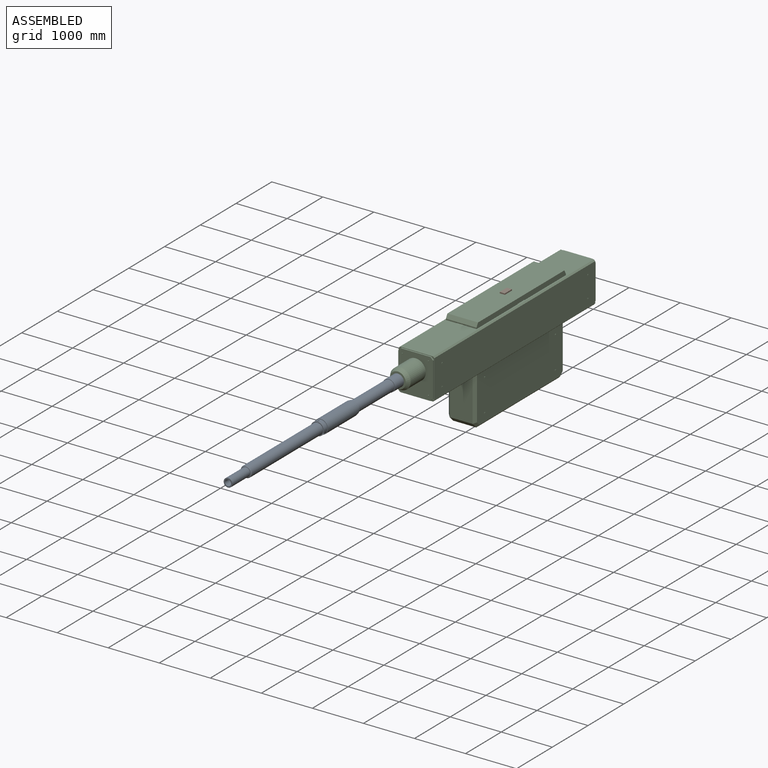
[diagram: assembled view]
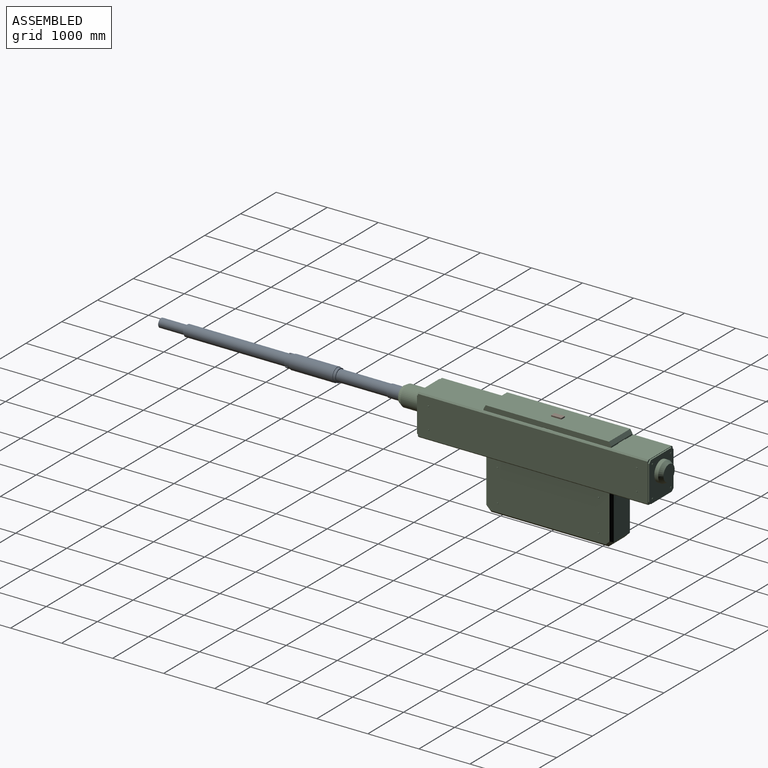
[diagram: assembled view, second angle]
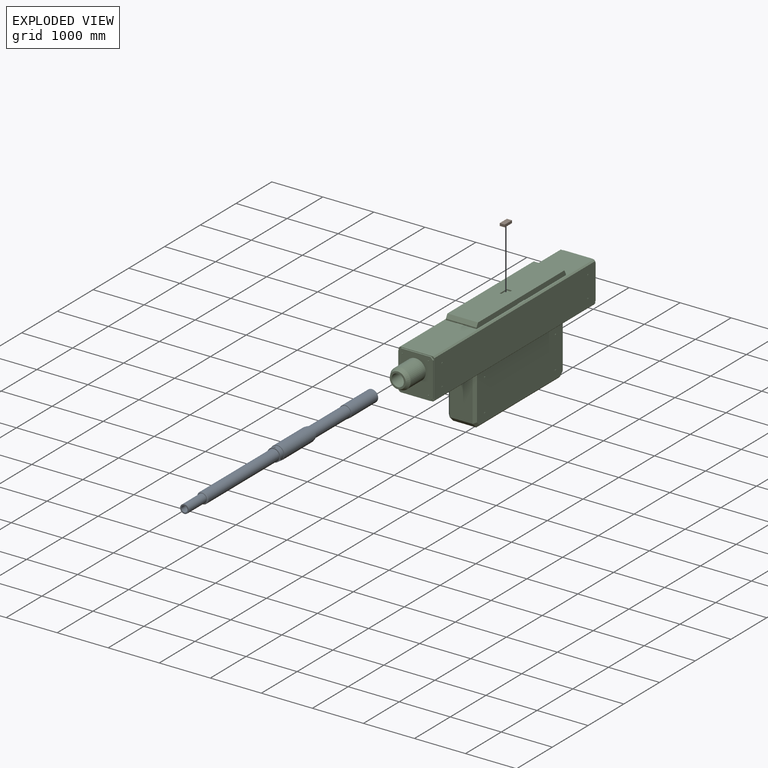
[diagram: exploded view]
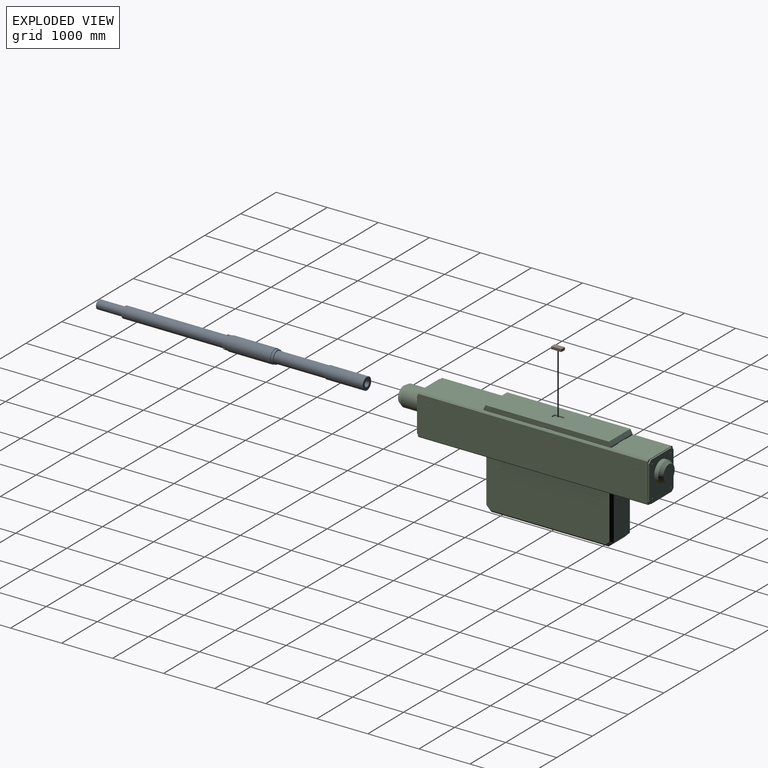
[diagram: exploded view, second angle]
ASSEMBLY  parts=3 mates=2
PART A: 29 faces, bbox 275x5250x275 mm
  f0: plane 255x254.61mm, normal (0,-1,0), area 12465.1mm2, adj f1,f8,f16,f17,f18,f20,f21,f22
  f1: cylinder r=127.5mm len=255mm, axis (0,-1,0), area 77107.5mm2, adj f0,f13,f16,f18,f19,f20,f22,f23
  f2: cylinder r=137.5mm len=850mm, axis (0,1,0), area 734347.3mm2, adj f13,f15
  f3: plane 255x255mm, normal (0,1,0), area 13057.2mm2, adj f7,f14
  f4: cylinder r=120mm len=750mm, axis (0,1,0), area 565486.7mm2, adj f5,f6
  f5: plane 240x240mm, normal (0,-1,0), area 7225.7mm2, adj f4,f7
  f6: plane 240x240mm, normal (0,1,0), area 33929.2mm2, adj f4,f12
  f7: cylinder r=110mm len=1000mm, axis (0,1,0), area 691150.4mm2, adj f3,f5
  f8: cylinder r=110mm len=1985mm, axis (0,1,0), area 1371933.5mm2, adj f0,f28
  f9: plane 190x190mm, normal (0,-1,0), area 5654.9mm2, adj f10,f28
  f10: cylinder r=85mm len=500mm, axis (0,1,0), area 267035.4mm2, adj f9,f11
  f11: plane 170x170mm, normal (0,-1,0), area 11388.3mm2, adj f10,f12
  f12: cylinder r=60mm len=5250mm, axis (0,-1,0), area 1979203.4mm2, adj f6,f11
  f13: plane 275x275mm, normal (0,-1,0), area 8325.2mm2, adj f1,f2
  f14: cylinder r=127.5mm len=255mm, axis (0,1,0), area 40055.3mm2, adj f3,f15
  f15: plane 275x275mm, normal (0,1,0), area 8325.2mm2, adj f2,f14
  f16: plane 50x9.61mm, normal (1,0,0), area 480.4mm2, adj f0,f1,f17,f19
  f17: plane 50x20mm, normal (0,0,1), area 1000mm2, adj f0,f16,f18,f19
  f18: plane 50x9.61mm, normal (-1,0,0), area 480.4mm2, adj f0,f1,f17,f19
  f19: plane 20x10mm, normal (0,-1,0), area 197.4mm2, adj f1,f16,f17,f18
  f20: plane 50x8.32mm, normal (-0.5,0,0.87), area 480.4mm2, adj f0,f1,f21,f23
  f21: plane 50x17.32mm, normal (-0.87,0,-0.5), area 1000mm2, adj f0,f20,f22,f23
  f22: plane 50x8.32mm, normal (0.5,0,-0.87), area 480.4mm2, adj f0,f1,f21,f23
  f23: plane 22.12x18.32mm, normal (0,-1,0), area 197.4mm2, adj f1,f20,f21,f22
  f24: plane 50x8.32mm, normal (-0.5,0,-0.87), area 480.4mm2, adj f0,f1,f25,f27
  f25: plane 50x17.32mm, normal (0.87,0,-0.5), area 1000mm2, adj f0,f24,f26,f27
  f26: plane 50x8.32mm, normal (0.5,0,0.87), area 480.4mm2, adj f0,f1,f25,f27
  f27: plane 22.12x18.32mm, normal (0,-1,0), area 197.4mm2, adj f1,f24,f25,f26
  f28: cone r=95mm half-angle=45deg, axis (0,1,0), area 13661.9mm2, adj f8,f9
PART B: 6 faces, bbox 100x200x50 mm
  f0: plane 100x50mm, normal (0,1,0), area 5000mm2, adj f1,f3,f4,f5
  f1: plane 200x50mm, normal (-1,0,0), area 10000mm2, adj f0,f2,f4,f5
  f2: plane 100x50mm, normal (0,-1,0), area 5000mm2, adj f1,f3,f4,f5
  f3: plane 200x50mm, normal (1,0,0), area 10000mm2, adj f0,f2,f4,f5
  f4: plane 200x100mm, normal (0,0,1), area 20000mm2, adj f0,f1,f2,f3
  f5: plane 200x100mm, normal (0,0,-1), area 20000mm2, adj f0,f1,f2,f3
PART C: 209 faces, bbox 720x5200x1900 mm
  f0: plane 2413.4x600mm, normal (0,0,1), area 1428038.5mm2, adj f3,f47,f48,f111,f204,f205,f206,f207
  f1: plane 4500x750mm, normal (1,0,0), area 3373400mm2, adj f6,f7,f10,f11,f90,f91,f92,f93
  f2: plane 900x450mm, normal (0,1,0), area 404000mm2, adj f8,f56,f62,f65,f67,f150,f153
  f3: plane 2500x100mm, normal (1,0,0), area 244752.4mm2, adj f0,f9,f45,f46,f47,f48,f49,f50
  f4: plane 780x680mm, normal (0,1,0), area 398136.3mm2, adj f15,f16,f17,f18,f19,f32,f33,f34
  f5: plane 780x680mm, normal (0,-1,0), area 398136.3mm2, adj f12,f13,f14,f20,f21,f22,f23,f24
  f6: plane 800x700mm, normal (0,1,0), area 33350mm2, adj f1,f8,f9,f10,f11,f15,f16,f17
  f7: plane 800x700mm, normal (0,-1,0), area 33350mm2, adj f1,f8,f9,f10,f11,f12,f13,f14
  f8: plane 4500x650mm, normal (0,0,-1), area 1559000mm2, adj f2,f6,f7,f10,f43,f44,f58,f62
  f9: plane 4500x650mm, normal (0,0,1), area 1433000mm2, adj f3,f6,f7,f11,f45,f46,f49,f50
  f10: plane 4500x25mm, normal (0.71,0,-0.71), area 159099mm2, adj f1,f6,f7,f8
  f11: plane 4500x25mm, normal (0.71,0,0.71), area 159099mm2, adj f1,f6,f7,f9
  f12: plane 680x25mm, normal (1,0,0), area 17000mm2, adj f5,f7,f20,f21
  f13: plane 580x25mm, normal (0,0,1), area 14500mm2, adj f5,f7,f21,f119
  f14: plane 580x25mm, normal (0,0,-1), area 14500mm2, adj f5,f7,f20,f118
  f15: plane 580x25mm, normal (0,0,1), area 14500mm2, adj f4,f6,f19,f117
  f16: plane 680x25mm, normal (1,0,0), area 17000mm2, adj f4,f6,f18,f19
  f17: plane 580x25mm, normal (0,0,-1), area 14500mm2, adj f4,f6,f18,f116
  f18: plane 50x50mm, normal (0.71,0,-0.71), area 1767.8mm2, adj f4,f6,f16,f17
  f19: plane 50x50mm, normal (0.71,0,0.71), area 1767.8mm2, adj f4,f6,f15,f16
  f20: plane 50x50mm, normal (0.71,0,-0.71), area 1767.8mm2, adj f5,f7,f12,f14
  f21: plane 50x50mm, normal (0.71,0,0.71), area 1767.8mm2, adj f5,f7,f12,f13
  f22: plane 20x10mm, normal (0,0,1), area 200mm2, adj f5,f23,f25,f26
  f23: plane 20x10mm, normal (-1,0,0), area 200mm2, adj f5,f22,f24,f26
  f24: plane 20x10mm, normal (0,0,-1), area 200mm2, adj f5,f23,f25,f26
  f25: plane 20x10mm, normal (1,0,0), area 200mm2, adj f5,f22,f24,f26
  f26: plane 20x20mm, normal (0,-1,0), area 400mm2, adj f22,f23,f24,f25
  f27: plane 20x10mm, normal (0,0,1), area 200mm2, adj f5,f28,f30,f31
  f28: plane 20x10mm, normal (-1,0,0), area 200mm2, adj f5,f27,f29,f31
  f29: plane 20x10mm, normal (0,0,-1), area 200mm2, adj f5,f28,f30,f31
  f30: plane 20x10mm, normal (1,0,0), area 200mm2, adj f5,f27,f29,f31
  f31: plane 20x20mm, normal (0,-1,0), area 400mm2, adj f27,f28,f29,f30
  f32: plane 20x10mm, normal (0,0,1), area 200mm2, adj f4,f33,f35,f36
  f33: plane 20x10mm, normal (1,0,0), area 200mm2, adj f4,f32,f34,f36
  f34: plane 20x10mm, normal (0,0,-1), area 200mm2, adj f4,f33,f35,f36
  f35: plane 20x10mm, normal (-1,0,0), area 200mm2, adj f4,f32,f34,f36
  f36: plane 20x20mm, normal (0,1,0), area 400mm2, adj f32,f33,f34,f35
  f37: plane 20x10mm, normal (0,0,1), area 200mm2, adj f4,f38,f40,f41
  f38: plane 20x10mm, normal (1,0,0), area 200mm2, adj f4,f37,f39,f41
  f39: plane 20x10mm, normal (0,0,-1), area 200mm2, adj f4,f38,f40,f41
  f40: plane 20x10mm, normal (-1,0,0), area 200mm2, adj f4,f37,f39,f41
  f41: plane 20x20mm, normal (0,1,0), area 400mm2, adj f37,f38,f39,f40
  f42: plane 2300x450mm, normal (0,0,-1), area 1035000mm2, adj f56,f57,f60,f148
  f43: plane 900x450mm, normal (0,-1,0), area 404000mm2, adj f8,f57,f58,f66,f69,f146,f154
  f44: plane 2400x950mm, normal (1,0,0), area 2272400mm2, adj f8,f58,f59,f60,f61,f62,f63,f64
  f45: plane 600x25mm, normal (0,1,0), area 13000mm2, adj f3,f9,f47,f52,f55,f111,f144
  f46: plane 600x25mm, normal (0,-1,0), area 13000mm2, adj f3,f9,f48,f51,f54,f111,f143
  f47: plane 600x75mm, normal (0,0.87,0.5), area 51961.5mm2, adj f0,f3,f45,f111
  f48: plane 600x75mm, normal (0,-0.87,0.5), area 51961.5mm2, adj f0,f3,f46,f111
  f49: plane 10x10mm, normal (0,-1,0), area 50mm2, adj f3,f9,f53
  f50: plane 10x10mm, normal (0,1,0), area 50mm2, adj f3,f9,f53
  f51: plane 10x10mm, normal (-1,0,0), area 50mm2, adj f9,f46,f54
  f52: plane 10x10mm, normal (-1,0,0), area 50mm2, adj f9,f45,f55
  f53: plane 200x10mm, normal (0.71,0,-0.71), area 2828.4mm2, adj f3,f9,f49,f50
  f54: plane 200x10mm, normal (0,-0.71,-0.71), area 2828.4mm2, adj f9,f46,f51,f143
  f55: plane 200x10mm, normal (0,0.71,-0.71), area 2828.4mm2, adj f9,f45,f52,f144
  f56: plane 450x100mm, normal (0,0.71,-0.71), area 63639.6mm2, adj f2,f42,f61,f149
  f57: plane 450x100mm, normal (0,-0.71,-0.71), area 63639.6mm2, adj f42,f43,f59,f147
  f58: plane 900x50mm, normal (0.71,-0.71,0), area 62907.4mm2, adj f8,f43,f44,f59
  f59: plane 120.71x120.71mm, normal (0.71,-0.5,-0.5), area 8535.5mm2, adj f44,f57,f58,f60
  f60: plane 2300x50mm, normal (0.71,0,-0.71), area 161170.1mm2, adj f42,f44,f59,f61
  f61: plane 120.71x120.71mm, normal (0.71,0.5,-0.5), area 8535.5mm2, adj f44,f56,f60,f62
  f62: plane 900x50mm, normal (0.71,0.71,0), area 62907.4mm2, adj f2,f8,f44,f61
  f63: plane 10x10mm, normal (0,1,0), area 50mm2, adj f8,f44,f68
  f64: plane 10x10mm, normal (0,-1,0), area 50mm2, adj f8,f44,f68
  f65: plane 10x10mm, normal (-1,0,0), area 50mm2, adj f2,f8,f67
  f66: plane 10x10mm, normal (-1,0,0), area 50mm2, adj f8,f43,f69
  f67: plane 100x10mm, normal (0,0.71,0.71), area 1414.2mm2, adj f2,f8,f65,f153
  f68: plane 100x10mm, normal (0.71,0,0.71), area 1414.2mm2, adj f8,f44,f63,f64
  f69: plane 100x10mm, normal (0,-0.71,0.71), area 1414.2mm2, adj f8,f43,f66,f154
  f70: plane 20x10mm, normal (0,0,1), area 200mm2, adj f44,f71,f73,f74
  f71: plane 20x10mm, normal (0,-1,0), area 200mm2, adj f44,f70,f72,f74
  f72: plane 20x10mm, normal (0,0,-1), area 200mm2, adj f44,f71,f73,f74
  f73: plane 20x10mm, normal (0,1,0), area 200mm2, adj f44,f70,f72,f74
  f74: plane 20x20mm, normal (1,0,0), area 400mm2, adj f70,f71,f72,f73
  f75: plane 20x10mm, normal (0,0,1), area 200mm2, adj f44,f76,f78,f79
  f76: plane 20x10mm, normal (0,-1,0), area 200mm2, adj f44,f75,f77,f79
  f77: plane 20x10mm, normal (0,0,-1), area 200mm2, adj f44,f76,f78,f79
  f78: plane 20x10mm, normal (0,1,0), area 200mm2, adj f44,f75,f77,f79
  f79: plane 20x20mm, normal (1,0,0), area 400mm2, adj f75,f76,f77,f78
  f80: plane 20x10mm, normal (0,0,1), area 200mm2, adj f44,f81,f83,f84
  f81: plane 20x10mm, normal (0,-1,0), area 200mm2, adj f44,f80,f82,f84
  f82: plane 20x10mm, normal (0,0,-1), area 200mm2, adj f44,f81,f83,f84
  f83: plane 20x10mm, normal (0,1,0), area 200mm2, adj f44,f80,f82,f84
  f84: plane 20x20mm, normal (1,0,0), area 400mm2, adj f80,f81,f82,f83
  f85: plane 20x10mm, normal (0,0,1), area 200mm2, adj f44,f86,f88,f89
  f86: plane 20x10mm, normal (0,-1,0), area 200mm2, adj f44,f85,f87,f89
  f87: plane 20x10mm, normal (0,0,-1), area 200mm2, adj f44,f86,f88,f89
  f88: plane 20x10mm, normal (0,1,0), area 200mm2, adj f44,f85,f87,f89
  f89: plane 20x20mm, normal (1,0,0), area 400mm2, adj f85,f86,f87,f88
  f90: plane 20x10mm, normal (0,0,1), area 200mm2, adj f1,f91,f93,f94
  f91: plane 20x10mm, normal (0,-1,0), area 200mm2, adj f1,f90,f92,f94
  f92: plane 20x10mm, normal (0,0,-1), area 200mm2, adj f1,f91,f93,f94
  f93: plane 20x10mm, normal (0,1,0), area 200mm2, adj f1,f90,f92,f94
  f94: plane 20x20mm, normal (1,0,0), area 400mm2, adj f90,f91,f92,f93
  f95: plane 20x10mm, normal (0,0,1), area 200mm2, adj f1,f96,f98,f99
  f96: plane 20x10mm, normal (0,-1,0), area 200mm2, adj f1,f95,f97,f99
  f97: plane 20x10mm, normal (0,0,-1), area 200mm2, adj f1,f96,f98,f99
  f98: plane 20x10mm, normal (0,1,0), area 200mm2, adj f1,f95,f97,f99
  f99: plane 20x20mm, normal (1,0,0), area 400mm2, adj f95,f96,f97,f98
  f100: plane 20x10mm, normal (0,0,1), area 200mm2, adj f1,f101,f103,f104
  f101: plane 20x10mm, normal (0,-1,0), area 200mm2, adj f1,f100,f102,f104
  f102: plane 20x10mm, normal (0,0,-1), area 200mm2, adj f1,f101,f103,f104
  f103: plane 20x10mm, normal (0,1,0), area 200mm2, adj f1,f100,f102,f104
  f104: plane 20x20mm, normal (1,0,0), area 400mm2, adj f100,f101,f102,f103
  f105: plane 20x10mm, normal (0,0,1), area 200mm2, adj f1,f106,f108,f109
  f106: plane 20x10mm, normal (0,-1,0), area 200mm2, adj f1,f105,f107,f109
  f107: plane 20x10mm, normal (0,0,-1), area 200mm2, adj f1,f106,f108,f109
  f108: plane 20x10mm, normal (0,1,0), area 200mm2, adj f1,f105,f107,f109
  f109: plane 20x20mm, normal (1,0,0), area 400mm2, adj f105,f106,f107,f108
  f110: plane 4500x750mm, normal (-1,0,0), area 3373400mm2, adj f6,f7,f112,f113,f176,f177,f178,f179
  f111: plane 2500x100mm, normal (-1,0,0), area 244752.4mm2, adj f0,f9,f45,f46,f47,f48,f141,f142
  f112: plane 4500x25mm, normal (-0.71,0,-0.71), area 159099mm2, adj f6,f7,f8,f110
  f113: plane 4500x25mm, normal (-0.71,0,0.71), area 159099mm2, adj f6,f7,f9,f110
  f114: plane 680x25mm, normal (-1,0,0), area 17000mm2, adj f5,f7,f118,f119
  f115: plane 680x25mm, normal (-1,0,0), area 17000mm2, adj f4,f6,f116,f117
  f116: plane 50x50mm, normal (-0.71,0,-0.71), area 1767.8mm2, adj f4,f6,f17,f115
  f117: plane 50x50mm, normal (-0.71,0,0.71), area 1767.8mm2, adj f4,f6,f15,f115
  f118: plane 50x50mm, normal (-0.71,0,-0.71), area 1767.8mm2, adj f5,f7,f14,f114
  f119: plane 50x50mm, normal (-0.71,0,0.71), area 1767.8mm2, adj f5,f7,f13,f114
  f120: plane 20x10mm, normal (0,0,1), area 200mm2, adj f5,f121,f123,f124
  f121: plane 20x10mm, normal (1,0,0), area 200mm2, adj f5,f120,f122,f124
  f122: plane 20x10mm, normal (0,0,-1), area 200mm2, adj f5,f121,f123,f124
  f123: plane 20x10mm, normal (-1,0,0), area 200mm2, adj f5,f120,f122,f124
  f124: plane 20x20mm, normal (0,-1,0), area 400mm2, adj f120,f121,f122,f123
  f125: plane 20x10mm, normal (0,0,1), area 200mm2, adj f5,f126,f128,f129
  f126: plane 20x10mm, normal (1,0,0), area 200mm2, adj f5,f125,f127,f129
  f127: plane 20x10mm, normal (0,0,-1), area 200mm2, adj f5,f126,f128,f129
  f128: plane 20x10mm, normal (-1,0,0), area 200mm2, adj f5,f125,f127,f129
  f129: plane 20x20mm, normal (0,-1,0), area 400mm2, adj f125,f126,f127,f128
  f130: plane 20x10mm, normal (0,0,1), area 200mm2, adj f4,f131,f133,f134
  f131: plane 20x10mm, normal (-1,0,0), area 200mm2, adj f4,f130,f132,f134
  f132: plane 20x10mm, normal (0,0,-1), area 200mm2, adj f4,f131,f133,f134
  f133: plane 20x10mm, normal (1,0,0), area 200mm2, adj f4,f130,f132,f134
  f134: plane 20x20mm, normal (0,1,0), area 400mm2, adj f130,f131,f132,f133
  f135: plane 20x10mm, normal (0,0,1), area 200mm2, adj f4,f136,f138,f139
  f136: plane 20x10mm, normal (-1,0,0), area 200mm2, adj f4,f135,f137,f139
  f137: plane 20x10mm, normal (0,0,-1), area 200mm2, adj f4,f136,f138,f139
  f138: plane 20x10mm, normal (1,0,0), area 200mm2, adj f4,f135,f137,f139
  f139: plane 20x20mm, normal (0,1,0), area 400mm2, adj f135,f136,f137,f138
  f140: plane 2400x950mm, normal (-1,0,0), area 2272400mm2, adj f8,f146,f147,f148,f149,f150,f151,f152
  f141: plane 10x10mm, normal (0,-1,0), area 50mm2, adj f9,f111,f145
  f142: plane 10x10mm, normal (0,1,0), area 50mm2, adj f9,f111,f145
  f143: plane 10x10mm, normal (1,0,0), area 50mm2, adj f9,f46,f54
  f144: plane 10x10mm, normal (1,0,0), area 50mm2, adj f9,f45,f55
  f145: plane 200x10mm, normal (-0.71,0,-0.71), area 2828.4mm2, adj f9,f111,f141,f142
  f146: plane 900x50mm, normal (-0.71,-0.71,0), area 62907.4mm2, adj f8,f43,f140,f147
  f147: plane 120.71x120.71mm, normal (-0.71,-0.5,-0.5), area 8535.5mm2, adj f57,f140,f146,f148
  f148: plane 2300x50mm, normal (-0.71,0,-0.71), area 161170.1mm2, adj f42,f140,f147,f149
  f149: plane 120.71x120.71mm, normal (-0.71,0.5,-0.5), area 8535.5mm2, adj f56,f140,f148,f150
  f150: plane 900x50mm, normal (-0.71,0.71,0), area 62907.4mm2, adj f2,f8,f140,f149
  f151: plane 10x10mm, normal (0,1,0), area 50mm2, adj f8,f140,f155
  f152: plane 10x10mm, normal (0,-1,0), area 50mm2, adj f8,f140,f155
  f153: plane 10x10mm, normal (1,0,0), area 50mm2, adj f2,f8,f67
  f154: plane 10x10mm, normal (1,0,0), area 50mm2, adj f8,f43,f69
  f155: plane 100x10mm, normal (-0.71,0,0.71), area 1414.2mm2, adj f8,f140,f151,f152
  f156: plane 20x10mm, normal (0,0,1), area 200mm2, adj f140,f157,f159,f160
  f157: plane 20x10mm, normal (0,-1,0), area 200mm2, adj f140,f156,f158,f160
  f158: plane 20x10mm, normal (0,0,-1), area 200mm2, adj f140,f157,f159,f160
  f159: plane 20x10mm, normal (0,1,0), area 200mm2, adj f140,f156,f158,f160
  f160: plane 20x20mm, normal (-1,0,0), area 400mm2, adj f156,f157,f158,f159
  f161: plane 20x10mm, normal (0,0,1), area 200mm2, adj f140,f162,f164,f165
  f162: plane 20x10mm, normal (0,-1,0), area 200mm2, adj f140,f161,f163,f165
  f163: plane 20x10mm, normal (0,0,-1), area 200mm2, adj f140,f162,f164,f165
  f164: plane 20x10mm, normal (0,1,0), area 200mm2, adj f140,f161,f163,f165
  f165: plane 20x20mm, normal (-1,0,0), area 400mm2, adj f161,f162,f163,f164
  f166: plane 20x10mm, normal (0,0,1), area 200mm2, adj f140,f167,f169,f170
  f167: plane 20x10mm, normal (0,-1,0), area 200mm2, adj f140,f166,f168,f170
  f168: plane 20x10mm, normal (0,0,-1), area 200mm2, adj f140,f167,f169,f170
  f169: plane 20x10mm, normal (0,1,0), area 200mm2, adj f140,f166,f168,f170
  f170: plane 20x20mm, normal (-1,0,0), area 400mm2, adj f166,f167,f168,f169
  f171: plane 20x10mm, normal (0,0,1), area 200mm2, adj f140,f172,f174,f175
  f172: plane 20x10mm, normal (0,-1,0), area 200mm2, adj f140,f171,f173,f175
  f173: plane 20x10mm, normal (0,0,-1), area 200mm2, adj f140,f172,f174,f175
  f174: plane 20x10mm, normal (0,1,0), area 200mm2, adj f140,f171,f173,f175
  f175: plane 20x20mm, normal (-1,0,0), area 400mm2, adj f171,f172,f173,f174
  f176: plane 20x10mm, normal (0,0,1), area 200mm2, adj f110,f177,f179,f180
  f177: plane 20x10mm, normal (0,-1,0), area 200mm2, adj f110,f176,f178,f180
  f178: plane 20x10mm, normal (0,0,-1), area 200mm2, adj f110,f177,f179,f180
  f179: plane 20x10mm, normal (0,1,0), area 200mm2, adj f110,f176,f178,f180
  f180: plane 20x20mm, normal (-1,0,0), area 400mm2, adj f176,f177,f178,f179
  f181: plane 20x10mm, normal (0,0,1), area 200mm2, adj f110,f182,f184,f185
  f182: plane 20x10mm, normal (0,-1,0), area 200mm2, adj f110,f181,f183,f185
  f183: plane 20x10mm, normal (0,0,-1), area 200mm2, adj f110,f182,f184,f185
  f184: plane 20x10mm, normal (0,1,0), area 200mm2, adj f110,f181,f183,f185
  f185: plane 20x20mm, normal (-1,0,0), area 400mm2, adj f181,f182,f183,f184
  f186: plane 20x10mm, normal (0,0,1), area 200mm2, adj f110,f187,f189,f190
  f187: plane 20x10mm, normal (0,-1,0), area 200mm2, adj f110,f186,f188,f190
  f188: plane 20x10mm, normal (0,0,-1), area 200mm2, adj f110,f187,f189,f190
  f189: plane 20x10mm, normal (0,1,0), area 200mm2, adj f110,f186,f188,f190
  f190: plane 20x20mm, normal (-1,0,0), area 400mm2, adj f186,f187,f188,f189
  f191: plane 20x10mm, normal (0,0,1), area 200mm2, adj f110,f192,f194,f195
  f192: plane 20x10mm, normal (0,-1,0), area 200mm2, adj f110,f191,f193,f195
  f193: plane 20x10mm, normal (0,0,-1), area 200mm2, adj f110,f192,f194,f195
  f194: plane 20x10mm, normal (0,1,0), area 200mm2, adj f110,f191,f193,f195
  f195: plane 20x20mm, normal (-1,0,0), area 400mm2, adj f191,f192,f193,f194
  f196: cylinder r=200mm len=425mm, axis (0,1,0), area 534070.8mm2, adj f5,f200
  f197: plane 313.4x313.4mm, normal (0,-1,0), area 31901.3mm2, adj f200,f202
  f198: cylinder r=200mm len=400mm, axis (0,-1,0), area 94247.8mm2, adj f4,f201
  f199: plane 313.4x313.4mm, normal (0,1,0), area 77140.2mm2, adj f201
  f200: cone r=156.7mm half-angle=30deg, axis (0,1,0), area 97047mm2, adj f196,f197
  f201: cone r=156.7mm half-angle=30deg, axis (0,-1,0), area 97047mm2, adj f198,f199
  f202: cylinder r=120mm len=500mm, axis (0,-1,0), area 376991.1mm2, adj f197,f203
  f203: plane 240x240mm, normal (0,-1,0), area 45238.9mm2, adj f202
  f204: plane 100x25mm, normal (0,-1,0), area 2500mm2, adj f0,f205,f207,f208
  f205: plane 200x25mm, normal (1,0,0), area 5000mm2, adj f0,f204,f206,f208
  f206: plane 100x25mm, normal (0,1,0), area 2500mm2, adj f0,f205,f207,f208
  f207: plane 200x25mm, normal (-1,0,0), area 5000mm2, adj f0,f204,f206,f208
  f208: plane 200x100mm, normal (0,0,1), area 20000mm2, adj f204,f205,f206,f207
PLACE A t=(350.55,-2375,34.6)mm
PLACE B t=(350.55,-2375,34.6)mm
PLACE C t=(350.55,-2375,34.6)mm
MATE fastened B.f5 <-> C.f208  axis (0,0,-1) through (0.55,125,909.6)mm
MATE fastened A.f1 <-> C.f196  axis (0,1,0) through (0.55,-2400,524.6)mm
